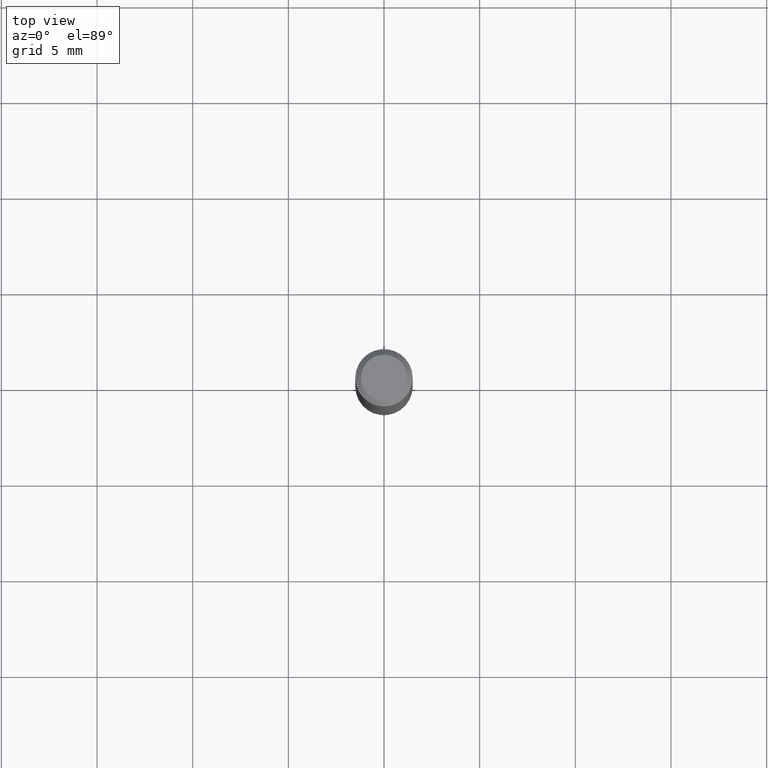
[diagram: clean part render]
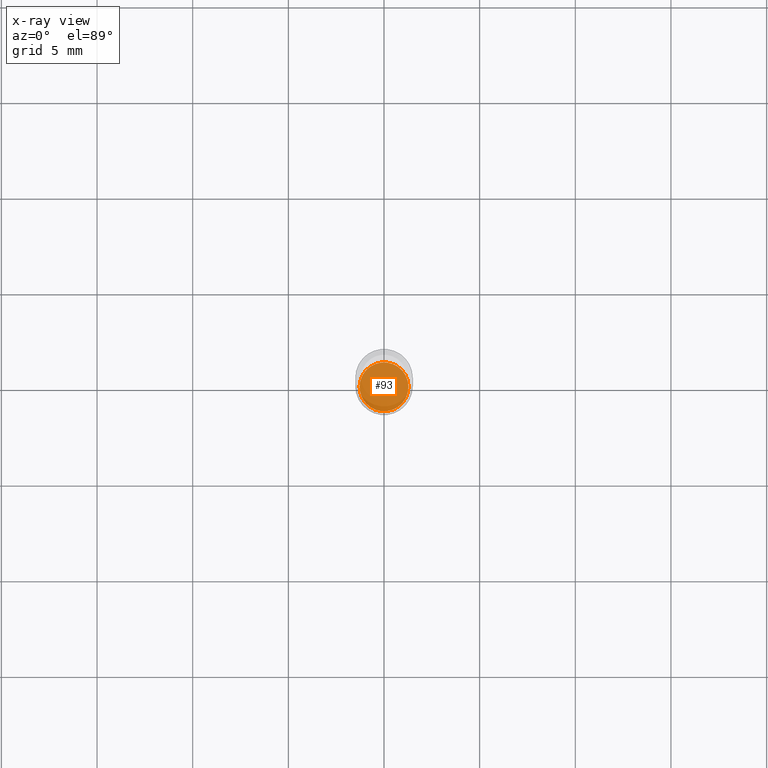
[diagram: x-ray — body ghosted, one internal face saturated and labeled with its STEP entity id]
A machine part, top view, then the same camera in x-ray: the body is ghosted and one INTERNAL B-rep face — a face not visible from any outside direction — is saturated and labeled: STEP entity #93.
In plain terms, the highlighted planar face has unit normal (-0, 0, 1).
Its self-contained STEP definition (entity closure, byte-faithful):
#72 = DIRECTION ( 'NONE',  ( 1.000000000000000000, -6.982962677686267499E-15, 0.000000000000000000 ) ) ;
#77 = ORIENTED_EDGE ( 'NONE', *, *, #451, .F. ) ;
#80 = CARTESIAN_POINT ( 'NONE',  ( 2.676565608369632355E-29, -3.821426325363822773E-15, -1.094500000000000028 ) ) ;
#93 = ADVANCED_FACE ( 'NONE', ( #399 ), #355, .F. ) ;
#143 = CIRCLE ( 'NONE', #419, 0.05029999999999999749 ) ;
#151 = VERTEX_POINT ( 'NONE', #257 ) ;
#165 = EDGE_LOOP ( 'NONE', ( #484, #77 ) ) ;
#169 = DIRECTION ( 'NONE',  ( 1.000000000000000000, -6.982962677686265922E-15, 4.876176775795935793E-29 ) ) ;
#257 = CARTESIAN_POINT ( 'NONE',  ( -0.05029999999999999749, -3.461374102102381492E-15, -1.094500000000000028 ) ) ;
#285 = CIRCLE ( 'NONE', #464, 0.05029999999999999749 ) ;
#289 = CARTESIAN_POINT ( 'NONE',  ( 6.011071908982761480E-30, -6.793600906939902471E-15, -1.094500000000000028 ) ) ;
#290 = CARTESIAN_POINT ( 'NONE',  ( 2.676565608369632355E-29, -3.821426325363822773E-15, -1.094500000000000028 ) ) ;
#333 = EDGE_CURVE ( 'NONE', #425, #151, #285, .T. ) ;
#336 = CARTESIAN_POINT ( 'NONE',  ( 0.05029999999999999749, -4.172669348051441913E-15, -1.094500000000000028 ) ) ;
#355 = PLANE ( 'NONE',  #422 ) ;
#357 = DIRECTION ( 'NONE',  ( -2.438088387897960049E-29, 3.491481338843145188E-15, 1.000000000000000000 ) ) ;
#381 = DIRECTION ( 'NONE',  ( 1.000000000000000000, -6.982962677686267499E-15, 0.000000000000000000 ) ) ;
#399 = FACE_OUTER_BOUND ( 'NONE', #165, .T. ) ;
#411 = DIRECTION ( 'NONE',  ( -2.445468806185136597E-29, 3.491481338843145583E-15, 1.000000000000000000 ) ) ;
#419 = AXIS2_PLACEMENT_3D ( 'NONE', #80, #421, #381 ) ;
#421 = DIRECTION ( 'NONE',  ( -2.445468806185136597E-29, 3.491481338843145583E-15, 1.000000000000000000 ) ) ;
#422 = AXIS2_PLACEMENT_3D ( 'NONE', #289, #357, #169 ) ;
#425 = VERTEX_POINT ( 'NONE', #336 ) ;
#451 = EDGE_CURVE ( 'NONE', #151, #425, #143, .T. ) ;
#464 = AXIS2_PLACEMENT_3D ( 'NONE', #290, #411, #72 ) ;
#484 = ORIENTED_EDGE ( 'NONE', *, *, #333, .F. ) ;